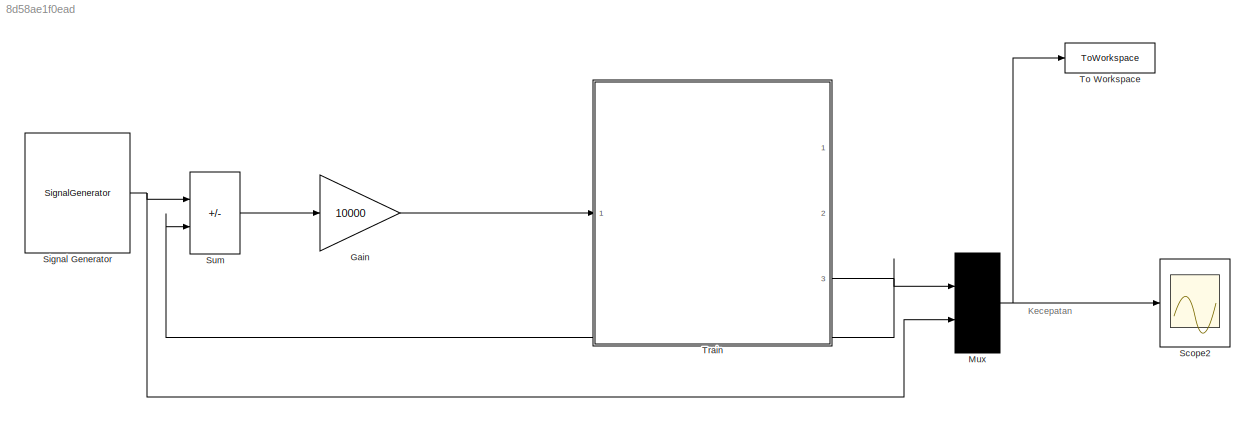
MODEL slx_8d58ae1f0ead
KIND model
CONFIG AbsTol = auto
CONFIG EnableMultiTasking = off
CONFIG FixedStep = auto
CONFIG MaxStep = auto
CONFIG MinStep = auto
CONFIG RelTol = 1e-3
CONFIG SampleTimeConstraint = Unconstrained
CONFIG SolverName = VariableStepAuto
CONFIG StartTime = 0.0
CONFIG StopTime = 1000
BLOCK [Gain] Gain
  Gain = 10000
BLOCK [Mux] Mux
  DisplayOption = bar
  Inputs = 2
  Ports = [2, 1]
BLOCK [Scope] Scope2
  Floating = off
  NumInputPorts = 1
  Ports = [1]
  ScopeSpecificationString = Simulink.scopes.TimeScopeBlockCfg('CurrentConfiguration', extmgr.ConfigurationSet(extmgr.Configuration('Core','General UI',true),extmgr.Configuration('Core','Source UI',true),extmgr.Configuration('Sources','WiredSimulink',true,'DataLoggingVariableName','Train','DataLogging',true,'DataLoggingSaveFormat','Array'),extmgr.Configuration('Visuals','Time Domain',true,'SerializedDisplays',{struct('MinYLim...<+1461ch>
BLOCK [SignalGenerator] Signal Generator
  Amplitude = -1
  Frequency = 0.001
  Ports = [0, 1]
  WaveForm = square
BLOCK [Sum] Sum
  IconShape = rectangular
  Inputs = +-
  Ports = [2, 1]
BLOCK [ToWorkspace] To Workspace
  FixptAsFi = on
  MaxDataPoints = inf
  Ports = [1]
  SampleTime = -1
  SaveFormat = Timeseries
  VariableName = TrainOut
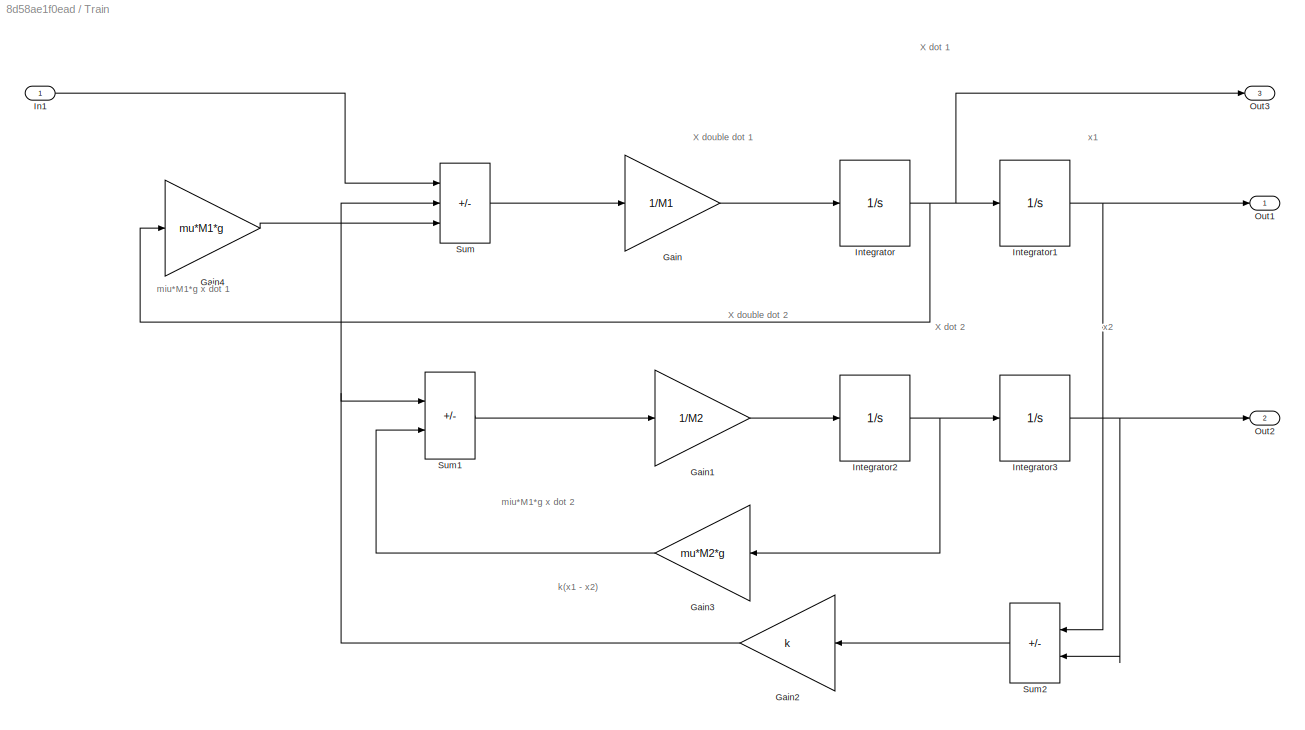
BLOCK [SubSystem] Train
  Ports = [1, 3]
  RequestExecContextInheritance = off
BLOCK [Gain] Train/Gain
  Gain = 1/M1
BLOCK [Gain] Train/Gain1
  Gain = 1/M2
BLOCK [Gain] Train/Gain2
  Gain = k
  NameLocation = top
BLOCK [Gain] Train/Gain3
  Gain = mu*M2*g
  NameLocation = top
BLOCK [Gain] Train/Gain4
  Gain = mu*M1*g
BLOCK [Inport] Train/In1
BLOCK [Integrator] Train/Integrator
  Ports = [1, 1]
BLOCK [Integrator] Train/Integrator1
  Ports = [1, 1]
BLOCK [Integrator] Train/Integrator2
  Ports = [1, 1]
BLOCK [Integrator] Train/Integrator3
  Ports = [1, 1]
BLOCK [Outport] Train/Out1
BLOCK [Outport] Train/Out2
  Port = 2
BLOCK [Outport] Train/Out3
  Port = 3
BLOCK [Sum] Train/Sum
  IconShape = rectangular
  Inputs = +--
  Ports = [3, 1]
BLOCK [Sum] Train/Sum1
  IconShape = rectangular
  Inputs = +-
  Ports = [2, 1]
BLOCK [Sum] Train/Sum2
  IconShape = rectangular
  Inputs = +-
  NameLocation = top
  Ports = [2, 1]
ANNOTATION (root): Kecepatan
ANNOTATION Train: X dot 1
ANNOTATION Train: X dot 2
ANNOTATION Train: X double dot 1
ANNOTATION Train: X double dot 2
ANNOTATION Train: k(x1 - x2)
ANNOTATION Train: miu*M1*g x dot 1
ANNOTATION Train: miu*M1*g x dot 2
ANNOTATION Train: x1
ANNOTATION Train: x2
LINE Gain:1 -> Train:1
NET Mux:1 -> Scope2:1, To Workspace:1
NET Signal Generator:1 -> Mux:2, Sum:1
LINE Sum:1 -> Gain:1
LINE Train/Gain1:1 -> Train/Integrator2:1
NET Train/Gain2:1 -> Train/Sum1:1, Train/Sum:2
LINE Train/Gain3:1 -> Train/Sum1:2
LINE Train/Gain4:1 -> Train/Sum:3
LINE Train/Gain:1 -> Train/Integrator:1
LINE Train/In1:1 -> Train/Sum:1
NET Train/Integrator1:1 -> Train/Out1:1, Train/Sum2:1
NET Train/Integrator2:1 -> Train/Gain3:1, Train/Integrator3:1
NET Train/Integrator3:1 -> Train/Out2:1, Train/Sum2:2
NET Train/Integrator:1 -> Train/Gain4:1, Train/Integrator1:1, Train/Out3:1
LINE Train/Sum1:1 -> Train/Gain1:1
LINE Train/Sum2:1 -> Train/Gain2:1
LINE Train/Sum:1 -> Train/Gain:1
NET Train:3 -> Mux:1, Sum:2
note: NET lines group one-source signal fan-out (src -> all destinations, sorted); 1:1 wires keep LINE
